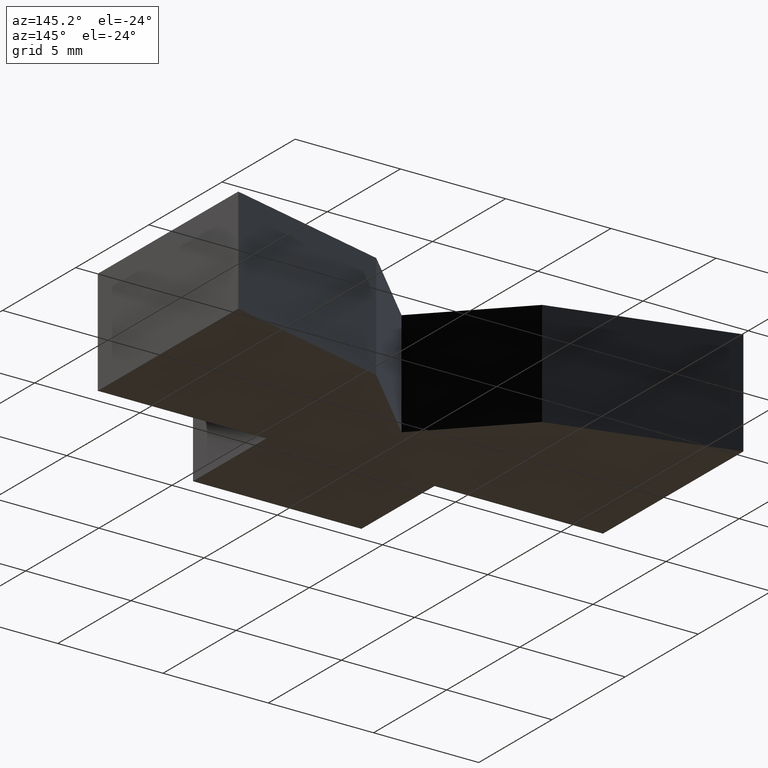
[diagram: clean part render]
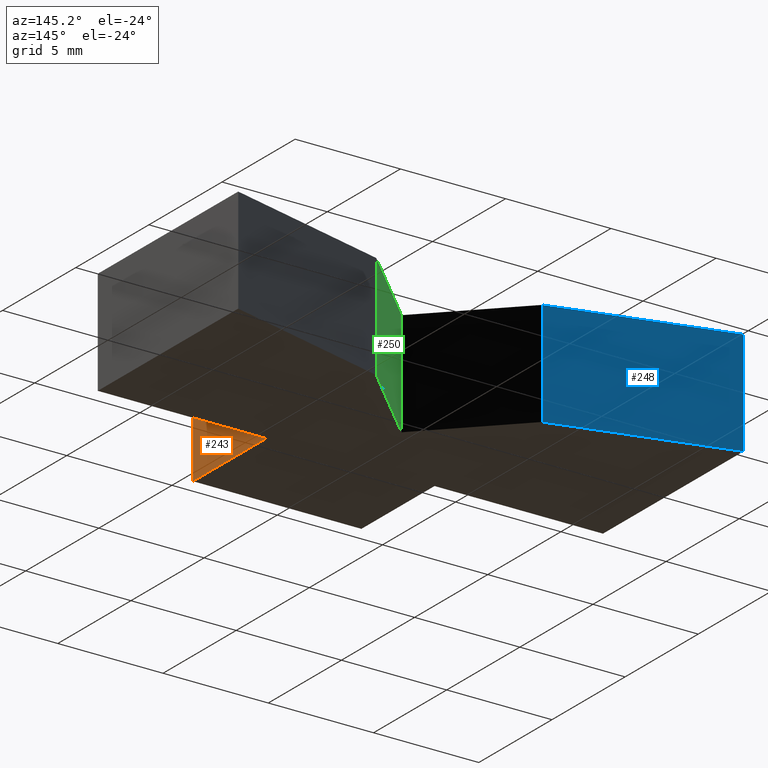
[diagram: same view with three faces highlighted in distinct colors, each labeled with its STEP entity id]
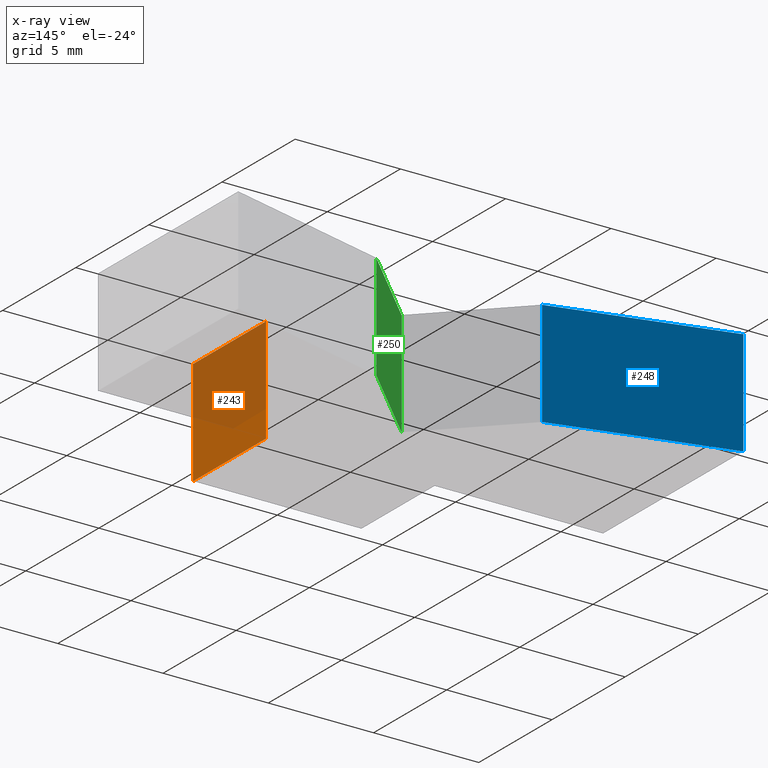
[diagram: x-ray of the same camera — body ghosted, the three highlighted faces saturated]
A machine part, auxiliary view with three faces highlighted in distinct colors.
The next image is the same camera in x-ray (body ghosted, the three faces saturated) — at least one of them is partly hidden behind the body in this view.
Their STEP definitions:

[orange] entity #243 — the highlighted planar face has unit normal (1, -0, 0).
#17=FACE_OUTER_BOUND('',#30,.T.);
#30=EDGE_LOOP('',(#174,#175,#176,#177));
#44=LINE('',#360,#77);
#53=LINE('',#379,#86);
#54=LINE('',#380,#87);
#55=LINE('',#381,#88);
#77=VECTOR('',#297,10.);
#86=VECTOR('',#308,10.);
#87=VECTOR('',#309,10.);
#88=VECTOR('',#310,10.);
#110=VERTEX_POINT('',#357);
#111=VERTEX_POINT('',#359);
#119=VERTEX_POINT('',#377);
#120=VERTEX_POINT('',#378);
#132=EDGE_CURVE('',#111,#110,#44,.T.);
#141=EDGE_CURVE('',#119,#120,#53,.T.);
#142=EDGE_CURVE('',#111,#120,#54,.T.);
#143=EDGE_CURVE('',#119,#110,#55,.T.);
#174=ORIENTED_EDGE('',*,*,#141,.T.);
#175=ORIENTED_EDGE('',*,*,#142,.F.);
#176=ORIENTED_EDGE('',*,*,#132,.T.);
#177=ORIENTED_EDGE('',*,*,#143,.F.);
#230=PLANE('',#279);
#243=ADVANCED_FACE('',(#17),#230,.T.);
#279=AXIS2_PLACEMENT_3D('',#376,#306,#307);
#297=DIRECTION('',(4.44089209850063E-16,1.,0.));
#306=DIRECTION('center_axis',(1.,-4.44089209850063E-16,0.));
#307=DIRECTION('ref_axis',(0.,0.,-1.));
#308=DIRECTION('',(-4.44089209850063E-16,-1.,0.));
#309=DIRECTION('',(0.,0.,1.));
#310=DIRECTION('',(0.,0.,-1.));
#357=CARTESIAN_POINT('',(4.,4.31368112539479E-16,-2.5));
#359=CARTESIAN_POINT('',(4.,-5.,-2.5));
#360=CARTESIAN_POINT('',(4.,-5.,-2.5));
#376=CARTESIAN_POINT('Origin',(4.,4.31368112539479E-16,0.));
#377=CARTESIAN_POINT('',(4.,4.31368112539479E-16,2.5));
#378=CARTESIAN_POINT('',(4.,-5.,2.5));
#379=CARTESIAN_POINT('',(4.,-5.,2.5));
#380=CARTESIAN_POINT('',(4.,-5.,0.));
#381=CARTESIAN_POINT('',(4.,4.31368112539479E-16,0.));

[blue] entity #248 — the highlighted planar face has unit normal (0.2588, 0.9659, 0).
#22=FACE_OUTER_BOUND('',#35,.T.);
#35=EDGE_LOOP('',(#194,#195,#196,#197));
#49=LINE('',#370,#82);
#63=LINE('',#397,#96);
#64=LINE('',#400,#97);
#65=LINE('',#401,#98);
#82=VECTOR('',#302,10.);
#96=VECTOR('',#326,10.);
#97=VECTOR('',#329,10.);
#98=VECTOR('',#330,10.);
#115=VERTEX_POINT('',#367);
#116=VERTEX_POINT('',#369);
#124=VERTEX_POINT('',#395);
#125=VERTEX_POINT('',#399);
#137=EDGE_CURVE('',#116,#115,#49,.T.);
#151=EDGE_CURVE('',#115,#124,#63,.T.);
#152=EDGE_CURVE('',#124,#125,#64,.T.);
#153=EDGE_CURVE('',#116,#125,#65,.T.);
#194=ORIENTED_EDGE('',*,*,#152,.T.);
#195=ORIENTED_EDGE('',*,*,#153,.F.);
#196=ORIENTED_EDGE('',*,*,#137,.T.);
#197=ORIENTED_EDGE('',*,*,#151,.T.);
#235=PLANE('',#284);
#248=ADVANCED_FACE('',(#22),#235,.T.);
#284=AXIS2_PLACEMENT_3D('',#398,#327,#328);
#302=DIRECTION('',(-0.965925826289068,0.25881904510252,0.));
#326=DIRECTION('',(0.,0.,1.));
#327=DIRECTION('center_axis',(0.25881904510252,0.965925826289068,0.));
#328=DIRECTION('ref_axis',(0.,0.,1.));
#329=DIRECTION('',(0.965925826289068,-0.25881904510252,0.));
#330=DIRECTION('',(0.,0.,1.));
#367=CARTESIAN_POINT('',(-12.,9.6,-2.5));
#369=CARTESIAN_POINT('',(-3.94045011767181,7.44045011767182,-2.5));
#370=CARTESIAN_POINT('',(-3.94045011767181,7.44045011767182,-2.5));
#395=CARTESIAN_POINT('',(-12.,9.6,2.5));
#397=CARTESIAN_POINT('',(-12.,9.6,0.));
#398=CARTESIAN_POINT('Origin',(-12.,9.6,0.));
#399=CARTESIAN_POINT('',(-3.94045011767181,7.44045011767182,2.5));
#400=CARTESIAN_POINT('',(-3.94045011767181,7.44045011767182,2.5));
#401=CARTESIAN_POINT('',(-3.94045011767181,7.44045011767182,0.));

[green] entity #250 — the highlighted planar face has unit normal (-0.7071, 0.7071, 0).
#24=FACE_OUTER_BOUND('',#37,.T.);
#37=EDGE_LOOP('',(#202,#203,#204,#205));
#51=LINE('',#374,#84);
#67=LINE('',#405,#100);
#68=LINE('',#408,#101);
#69=LINE('',#409,#102);
#84=VECTOR('',#304,10.);
#100=VECTOR('',#334,10.);
#101=VECTOR('',#337,10.);
#102=VECTOR('',#338,10.);
#117=VERTEX_POINT('',#371);
#118=VERTEX_POINT('',#373);
#126=VERTEX_POINT('',#403);
#127=VERTEX_POINT('',#407);
#139=EDGE_CURVE('',#118,#117,#51,.T.);
#155=EDGE_CURVE('',#117,#126,#67,.T.);
#156=EDGE_CURVE('',#126,#127,#68,.T.);
#157=EDGE_CURVE('',#118,#127,#69,.T.);
#202=ORIENTED_EDGE('',*,*,#156,.T.);
#203=ORIENTED_EDGE('',*,*,#157,.F.);
#204=ORIENTED_EDGE('',*,*,#139,.T.);
#205=ORIENTED_EDGE('',*,*,#155,.T.);
#237=PLANE('',#286);
#250=ADVANCED_FACE('',(#24),#237,.T.);
#286=AXIS2_PLACEMENT_3D('',#406,#335,#336);
#304=DIRECTION('',(-0.707106781186547,-0.707106781186548,0.));
#334=DIRECTION('',(0.,0.,1.));
#335=DIRECTION('center_axis',(-0.707106781186548,0.707106781186547,0.));
#336=DIRECTION('ref_axis',(0.,0.,1.));
#337=DIRECTION('',(0.707106781186547,0.707106781186548,0.));
#338=DIRECTION('',(0.,0.,1.));
#371=CARTESIAN_POINT('',(0.,3.5,-2.5));
#373=CARTESIAN_POINT('',(3.94045011767181,7.44045011767182,-2.5));
#374=CARTESIAN_POINT('',(3.94045011767181,7.44045011767182,-2.5));
#403=CARTESIAN_POINT('',(0.,3.5,2.5));
#405=CARTESIAN_POINT('',(0.,3.5,0.));
#406=CARTESIAN_POINT('Origin',(0.,3.5,0.));
#407=CARTESIAN_POINT('',(3.94045011767181,7.44045011767182,2.5));
#408=CARTESIAN_POINT('',(3.94045011767181,7.44045011767182,2.5));
#409=CARTESIAN_POINT('',(3.94045011767181,7.44045011767182,0.));